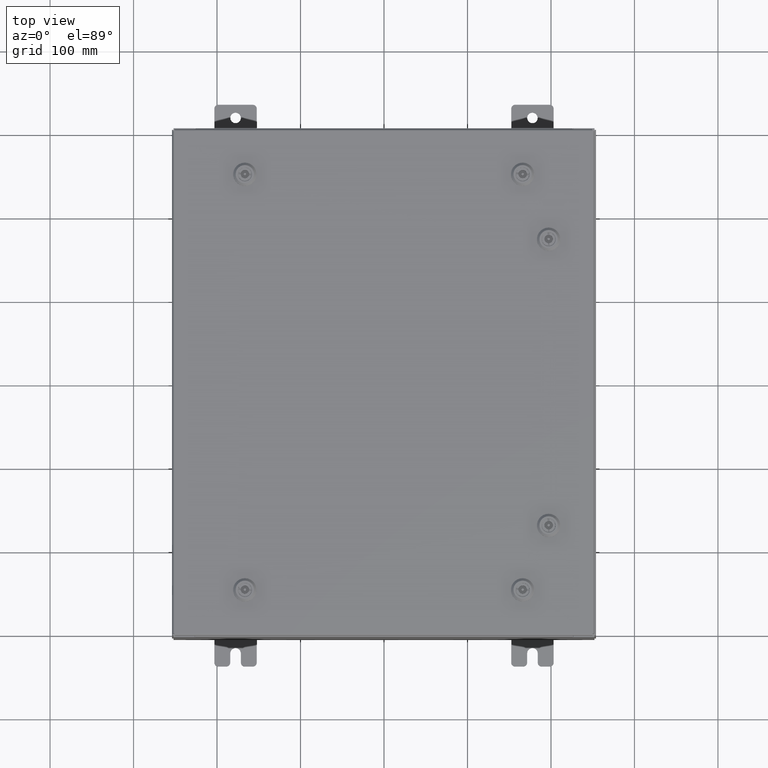
[diagram: clean part render]
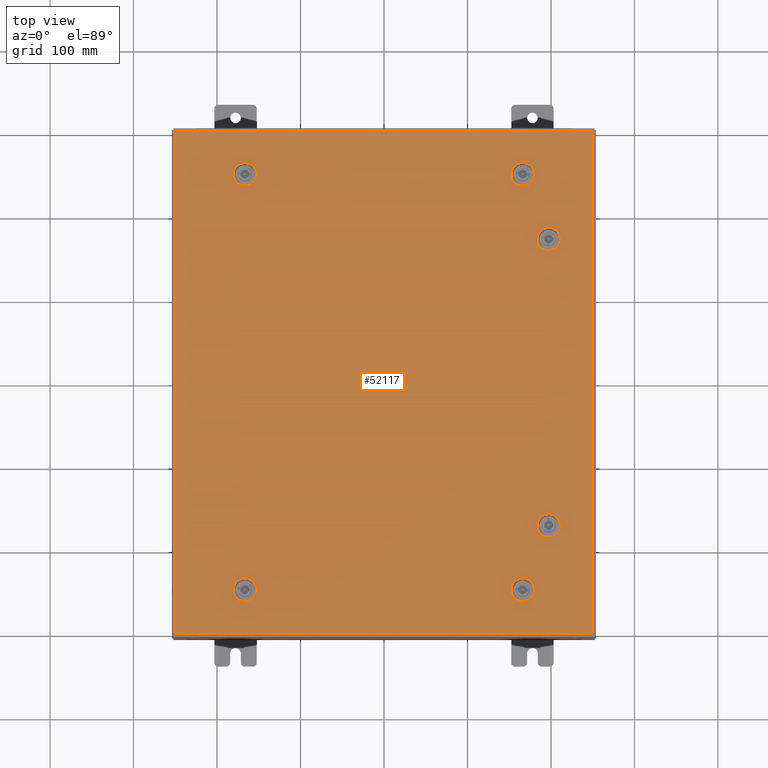
[diagram: same view with one face highlighted and labeled with its STEP entity id]
A machine part, top view. The second image highlights one B-rep face of the part: STEP entity #52117.
In plain terms, the highlighted planar face has unit normal (0, 0, -1).
Its self-contained STEP definition (entity closure, byte-faithful):
#29 = ORIENTED_EDGE ( 'NONE', *, *, #34976, .F. ) ;
#138 = VECTOR ( 'NONE', #22555, 39.37007874015748100 ) ;
#828 = AXIS2_PLACEMENT_3D ( 'NONE', #49563, #20142, #54496 ) ;
#1149 = CARTESIAN_POINT ( 'NONE',  ( 7.787800000000006100, -6.750000000000015100, -4.713499807438240100E-014 ) ) ;
#1556 = DIRECTION ( 'NONE',  ( 1.000000000000000000, 0.0000000000000000000, 0.0000000000000000000 ) ) ;
#1966 = EDGE_LOOP ( 'NONE', ( #42540, #11111, #29081, #46738, #45573 ) ) ;
#2431 = CARTESIAN_POINT ( 'NONE',  ( -6.761952375267868300, -10.18279999999999000, 0.0000000000000000000 ) ) ;
#2481 = CARTESIAN_POINT ( 'NONE',  ( -6.363047624732095300, 10.18279999999998300, 0.0000000000000000000 ) ) ;
#2883 = ORIENTED_EDGE ( 'NONE', *, *, #60091, .F. ) ;
#3074 = DIRECTION ( 'NONE',  ( 0.0000000000000000000, 0.0000000000000000000, -1.000000000000000000 ) ) ;
#3220 = EDGE_CURVE ( 'NONE', #22092, #38439, #21711, .T. ) ;
#3739 = CIRCLE ( 'NONE', #828, 0.4424999999999983400 ) ;
#4013 = VERTEX_POINT ( 'NONE', #7891 ) ;
#4289 = CARTESIAN_POINT ( 'NONE',  ( 6.761952375267868300, 10.18279999999999000, 0.0000000000000000000 ) ) ;
#4304 = VERTEX_POINT ( 'NONE', #23483 ) ;
#4646 = LINE ( 'NONE', #63521, #16155 ) ;
#5006 = EDGE_CURVE ( 'NONE', #46291, #14850, #30880, .T. ) ;
#5032 = DIRECTION ( 'NONE',  ( 8.218046007208852600E-015, 1.000000000000000000, 6.982962677686265900E-015 ) ) ;
#5931 = VERTEX_POINT ( 'NONE', #59109 ) ;
#6066 = VECTOR ( 'NONE', #5032, 39.37007874015748100 ) ;
#6093 = DIRECTION ( 'NONE',  ( 0.0000000000000000000, 1.000000000000000000, 6.982962677686251700E-015 ) ) ;
#6121 = CARTESIAN_POINT ( 'NONE',  ( -6.562499999999986700, -9.787799999999993600, -4.963978678686834100E-014 ) ) ;
#6465 = DIRECTION ( 'NONE',  ( 0.0000000000000000000, 0.0000000000000000000, 1.000000000000000000 ) ) ;
#6664 = CARTESIAN_POINT ( 'NONE',  ( 6.562499999999986700, -9.787799999999993600, -2.326024867937287700E-014 ) ) ;
#6787 = EDGE_LOOP ( 'NONE', ( #48010, #17649, #48501, #48381, #20097 ) ) ;
#6863 = VECTOR ( 'NONE', #54345, 39.37007874015748100 ) ;
#6882 = ORIENTED_EDGE ( 'NONE', *, *, #13526, .T. ) ;
#6900 = CIRCLE ( 'NONE', #44872, 0.4424999999999972800 ) ;
#6985 = DIRECTION ( 'NONE',  ( 0.0000000000000000000, -1.000000000000000000, 0.0000000000000000000 ) ) ;
#7081 = CARTESIAN_POINT ( 'NONE',  ( -6.562499999999986700, 9.787799999999991800, 0.0000000000000000000 ) ) ;
#7403 = AXIS2_PLACEMENT_3D ( 'NONE', #56320, #26874, #61219 ) ;
#7891 = CARTESIAN_POINT ( 'NONE',  ( -6.761952375267868300, 10.18279999999999000, 0.0000000000000000000 ) ) ;
#7905 = VECTOR ( 'NONE', #61704, 39.37007874015748100 ) ;
#7922 = VERTEX_POINT ( 'NONE', #30453 ) ;
#8342 = VECTOR ( 'NONE', #34690, 39.37007874015748100 ) ;
#8753 = VERTEX_POINT ( 'NONE', #23905 ) ;
#8867 = ORIENTED_EDGE ( 'NONE', *, *, #3220, .T. ) ;
#9548 = AXIS2_PLACEMENT_3D ( 'NONE', #57189, #27767, #62110 ) ;
#9674 = CARTESIAN_POINT ( 'NONE',  ( -6.562499999999986700, -9.787799999999993600, -4.963978678686834100E-014 ) ) ;
#9740 = DIRECTION ( 'NONE',  ( 1.000000000000000000, -2.739348669069610000E-015, -6.982962677686248600E-015 ) ) ;
#9945 = CARTESIAN_POINT ( 'NONE',  ( 8.182800000000000300, -6.949452375267901200, -4.852776656685392100E-014 ) ) ;
#10798 = ORIENTED_EDGE ( 'NONE', *, *, #28129, .F. ) ;
#11040 = DIRECTION ( 'NONE',  ( 0.0000000000000000000, 1.000000000000000000, 6.982962677686269100E-015 ) ) ;
#11111 = ORIENTED_EDGE ( 'NONE', *, *, #58409, .F. ) ;
#11436 = VECTOR ( 'NONE', #17781, 39.37007874015748100 ) ;
#11585 = DIRECTION ( 'NONE',  ( 1.000000000000000000, 0.0000000000000000000, 6.982962677686269100E-015 ) ) ;
#11711 = CARTESIAN_POINT ( 'NONE',  ( 8.182800000000000300, -6.949452375267901200, -4.852776656685392100E-014 ) ) ;
#11965 = DIRECTION ( 'NONE',  ( 1.000000000000000000, 0.0000000000000000000, 0.0000000000000000000 ) ) ;
#12290 = CIRCLE ( 'NONE', #9548, 0.4424999999999983400 ) ;
#12403 = CARTESIAN_POINT ( 'NONE',  ( -6.119999999999989400, 9.787799999999991800, 0.0000000000000000000 ) ) ;
#12693 = DIRECTION ( 'NONE',  ( -1.000000000000000000, -0.0000000000000000000, -0.0000000000000000000 ) ) ;
#12699 = CARTESIAN_POINT ( 'NONE',  ( 7.004999999999984800, 9.787799999999991800, -2.946949909237162500E-014 ) ) ;
#12747 = ORIENTED_EDGE ( 'NONE', *, *, #51123, .F. ) ;
#12885 = VERTEX_POINT ( 'NONE', #15949 ) ;
#13028 = VECTOR ( 'NONE', #20201, 39.37007874015748100 ) ;
#13156 = CARTESIAN_POINT ( 'NONE',  ( -6.761952375267871900, -9.392799999999995800, -4.688151652918228700E-014 ) ) ;
#13246 = CARTESIAN_POINT ( 'NONE',  ( 7.392800000000014500, -6.949452375267905600, -4.852776656685395200E-014 ) ) ;
#13526 = EDGE_CURVE ( 'NONE', #52606, #22092, #24515, .T. ) ;
#14078 = FACE_OUTER_BOUND ( 'NONE', #31216, .T. ) ;
#14215 = CARTESIAN_POINT ( 'NONE',  ( 6.562499999999986700, -9.787799999999993600, -2.326024867937287700E-014 ) ) ;
#14396 = CARTESIAN_POINT ( 'NONE',  ( -6.562499999999986700, 9.787799999999991800, 0.0000000000000000000 ) ) ;
#14458 = EDGE_CURVE ( 'NONE', #38439, #43496, #53690, .T. ) ;
#14642 = DIRECTION ( 'NONE',  ( 0.0000000000000000000, 1.000000000000000000, 6.982962677686269100E-015 ) ) ;
#14700 = EDGE_CURVE ( 'NONE', #26196, #39733, #60561, .T. ) ;
#14850 = VERTEX_POINT ( 'NONE', #23637 ) ;
#15218 = VECTOR ( 'NONE', #6985, 39.37007874015748100 ) ;
#15650 = FACE_BOUND ( 'NONE', #22870, .T. ) ;
#15748 = VERTEX_POINT ( 'NONE', #35920 ) ;
#15949 = CARTESIAN_POINT ( 'NONE',  ( 6.761952375267871900, 9.392799999999995800, -2.777230659996697100E-014 ) ) ;
#16137 = DIRECTION ( 'NONE',  ( 1.000000000000000000, 2.739348669069610000E-015, -0.0000000000000000000 ) ) ;
#16155 = VECTOR ( 'NONE', #9740, 39.37007874015748100 ) ;
#16175 = EDGE_LOOP ( 'NONE', ( #29, #31759, #2883, #12747 ) ) ;
#16806 = CIRCLE ( 'NONE', #27442, 0.4424999999999983400 ) ;
#16877 = VERTEX_POINT ( 'NONE', #40060 ) ;
#17111 = CARTESIAN_POINT ( 'NONE',  ( 6.363047624732095300, -10.18279999999998400, -2.741128742953046100E-014 ) ) ;
#17649 = ORIENTED_EDGE ( 'NONE', *, *, #18843, .F. ) ;
#17781 = DIRECTION ( 'NONE',  ( -1.000000000000000000, 2.739348669069610000E-015, 1.946424297521510000E-029 ) ) ;
#17976 = AXIS2_PLACEMENT_3D ( 'NONE', #14396, #48686, #19278 ) ;
#18208 = CIRCLE ( 'NONE', #50976, 0.4424999999999972800 ) ;
#18456 = EDGE_CURVE ( 'NONE', #7922, #28146, #24417, .T. ) ;
#18843 = EDGE_CURVE ( 'NONE', #52061, #30908, #3739, .T. ) ;
#19017 = LINE ( 'NONE', #9945, #6066 ) ;
#19024 = EDGE_CURVE ( 'NONE', #44923, #58112, #25159, .T. ) ;
#19087 = DIRECTION ( 'NONE',  ( 1.000000000000000000, 0.0000000000000000000, 6.982962677686269100E-015 ) ) ;
#19278 = DIRECTION ( 'NONE',  ( 1.000000000000000000, 0.0000000000000000000, 0.0000000000000000000 ) ) ;
#19568 = ORIENTED_EDGE ( 'NONE', *, *, #41877, .T. ) ;
#19895 = EDGE_CURVE ( 'NONE', #39236, #8753, #18208, .T. ) ;
#20097 = ORIENTED_EDGE ( 'NONE', *, *, #14700, .F. ) ;
#20142 = DIRECTION ( 'NONE',  ( 6.982962677686266700E-015, -0.0000000000000000000, 1.000000000000000000 ) ) ;
#20201 = DIRECTION ( 'NONE',  ( -8.218046007208852600E-015, 1.000000000000000000, -0.0000000000000000000 ) ) ;
#21241 = CARTESIAN_POINT ( 'NONE',  ( 8.182800000000003800, 6.550547624732132600, 0.0000000000000000000 ) ) ;
#21402 = CIRCLE ( 'NONE', #54353, 0.4424999999999972800 ) ;
#21711 = LINE ( 'NONE', #27336, #57819 ) ;
#22092 = VERTEX_POINT ( 'NONE', #22483 ) ;
#22483 = CARTESIAN_POINT ( 'NONE',  ( 9.849799999999996600, -11.84980000000000000, -2.048885995248197400E-016 ) ) ;
#22515 = PLANE ( 'NONE',  #57810 ) ;
#22555 = DIRECTION ( 'NONE',  ( -1.000000000000000000, -2.739348669069610000E-015, -6.982962677686276200E-015 ) ) ;
#22722 = CARTESIAN_POINT ( 'NONE',  ( -6.363047624732101500, 9.392799999999995800, 0.0000000000000000000 ) ) ;
#22841 = LINE ( 'NONE', #13246, #8342 ) ;
#22843 = DIRECTION ( 'NONE',  ( 1.000000000000000000, -0.0000000000000000000, -0.0000000000000000000 ) ) ;
#22870 = EDGE_LOOP ( 'NONE', ( #25334, #32273, #58362, #32843 ) ) ;
#22946 = VERTEX_POINT ( 'NONE', #61910 ) ;
#23236 = CARTESIAN_POINT ( 'NONE',  ( 7.004999999999983900, -9.787799999999993600, -2.017028769449672300E-014 ) ) ;
#23483 = CARTESIAN_POINT ( 'NONE',  ( 6.761952375267871900, -9.392799999999995800, 0.0000000000000000000 ) ) ;
#23637 = CARTESIAN_POINT ( 'NONE',  ( -6.363047624732095300, -10.18279999999998400, -5.239805704455435800E-014 ) ) ;
#23905 = CARTESIAN_POINT ( 'NONE',  ( -6.363047624732095300, 10.18279999999998300, 0.0000000000000000000 ) ) ;
#23954 = AXIS2_PLACEMENT_3D ( 'NONE', #55487, #26048, #60384 ) ;
#24417 = LINE ( 'NONE', #32356, #11436 ) ;
#24515 = LINE ( 'NONE', #52289, #36054 ) ;
#25159 = CIRCLE ( 'NONE', #33627, 0.4424999999999983400 ) ;
#25279 = AXIS2_PLACEMENT_3D ( 'NONE', #1149, #35424, #6093 ) ;
#25334 = ORIENTED_EDGE ( 'NONE', *, *, #30111, .F. ) ;
#25400 = VERTEX_POINT ( 'NONE', #23236 ) ;
#25463 = CARTESIAN_POINT ( 'NONE',  ( -9.849800000000001900, 11.84980000000000000, -2.048885995248197400E-016 ) ) ;
#25508 = DIRECTION ( 'NONE',  ( -6.982962677686266700E-015, -6.982962677686266700E-015, 1.000000000000000000 ) ) ;
#25825 = VECTOR ( 'NONE', #57565, 39.37007874015748100 ) ;
#25899 = CARTESIAN_POINT ( 'NONE',  ( 9.849799999999996600, 11.84980000000000000, 8.878505979408856000E-016 ) ) ;
#26048 = DIRECTION ( 'NONE',  ( -0.0000000000000000000, -6.982962677686266700E-015, 1.000000000000000000 ) ) ;
#26177 = LINE ( 'NONE', #62044, #138 ) ;
#26196 = VERTEX_POINT ( 'NONE', #44783 ) ;
#26636 = CARTESIAN_POINT ( 'NONE',  ( 6.562499999999986700, 9.787799999999991800, -2.637953810749545800E-014 ) ) ;
#26777 = AXIS2_PLACEMENT_3D ( 'NONE', #27829, #62171, #32757 ) ;
#26874 = DIRECTION ( 'NONE',  ( 0.0000000000000000000, 0.0000000000000000000, 1.000000000000000000 ) ) ;
#27062 = FACE_BOUND ( 'NONE', #1966, .T. ) ;
#27135 = DIRECTION ( 'NONE',  ( 0.0000000000000000000, 1.000000000000000000, 0.0000000000000000000 ) ) ;
#27336 = CARTESIAN_POINT ( 'NONE',  ( 9.849799999999996600, -11.84980000000000000, -2.048885995248197400E-016 ) ) ;
#27442 = AXIS2_PLACEMENT_3D ( 'NONE', #26636, #60995, #31608 ) ;
#27507 = AXIS2_PLACEMENT_3D ( 'NONE', #54939, #25508, #59863 ) ;
#27576 = LINE ( 'NONE', #54556, #13028 ) ;
#27767 = DIRECTION ( 'NONE',  ( -0.0000000000000000000, -6.982962677686266700E-015, 1.000000000000000000 ) ) ;
#27829 = CARTESIAN_POINT ( 'NONE',  ( 6.562499999999986700, 9.787799999999991800, -2.637953810749545800E-014 ) ) ;
#27893 = VERTEX_POINT ( 'NONE', #11711 ) ;
#28129 = EDGE_CURVE ( 'NONE', #4304, #56288, #26177, .T. ) ;
#28146 = VERTEX_POINT ( 'NONE', #13156 ) ;
#29075 = LINE ( 'NONE', #45512, #30638 ) ;
#29081 = ORIENTED_EDGE ( 'NONE', *, *, #59660, .F. ) ;
#29550 = EDGE_CURVE ( 'NONE', #56774, #39236, #38394, .T. ) ;
#29752 = AXIS2_PLACEMENT_3D ( 'NONE', #9674, #43974, #14642 ) ;
#29831 = LINE ( 'NONE', #2481, #42844 ) ;
#29944 = ORIENTED_EDGE ( 'NONE', *, *, #33427, .F. ) ;
#29989 = EDGE_CURVE ( 'NONE', #39733, #12885, #4646, .T. ) ;
#30111 = EDGE_CURVE ( 'NONE', #58112, #15748, #27576, .T. ) ;
#30453 = CARTESIAN_POINT ( 'NONE',  ( -6.363047624732101500, -9.392799999999997600, -4.688151652918229300E-014 ) ) ;
#30638 = VECTOR ( 'NONE', #16137, 39.37007874015748100 ) ;
#30880 = LINE ( 'NONE', #56784, #7905 ) ;
#30904 = DIRECTION ( 'NONE',  ( 0.0000000000000000000, 0.0000000000000000000, 1.000000000000000000 ) ) ;
#30908 = VERTEX_POINT ( 'NONE', #4289 ) ;
#31046 = CARTESIAN_POINT ( 'NONE',  ( 7.392800000000010000, -6.550547624732132600, 0.0000000000000000000 ) ) ;
#31216 = EDGE_LOOP ( 'NONE', ( #6882, #8867, #31851, #19568 ) ) ;
#31608 = DIRECTION ( 'NONE',  ( -1.000000000000000000, 0.0000000000000000000, 6.982962677686261200E-015 ) ) ;
#31706 = FACE_BOUND ( 'NONE', #6787, .T. ) ;
#31759 = ORIENTED_EDGE ( 'NONE', *, *, #39377, .F. ) ;
#31851 = ORIENTED_EDGE ( 'NONE', *, *, #14458, .T. ) ;
#31852 = DIRECTION ( 'NONE',  ( 1.000000000000000000, -1.095739467627835000E-014, 6.982962677686171300E-015 ) ) ;
#32008 = DIRECTION ( 'NONE',  ( -1.000000000000000000, 1.643609201441752500E-014, 0.0000000000000000000 ) ) ;
#32072 = VERTEX_POINT ( 'NONE', #52953 ) ;
#32271 = CIRCLE ( 'NONE', #38648, 0.4424999999999972800 ) ;
#32273 = ORIENTED_EDGE ( 'NONE', *, *, #19024, .F. ) ;
#32356 = CARTESIAN_POINT ( 'NONE',  ( -6.363047624732101500, -9.392799999999997600, -4.688151652918229300E-014 ) ) ;
#32757 = DIRECTION ( 'NONE',  ( -1.000000000000000000, 0.0000000000000000000, 6.982962677686260400E-015 ) ) ;
#32843 = ORIENTED_EDGE ( 'NONE', *, *, #39947, .F. ) ;
#32899 = CIRCLE ( 'NONE', #29752, 0.4424999999999972800 ) ;
#33078 = CARTESIAN_POINT ( 'NONE',  ( 6.363047624732095300, 10.18279999999998300, -2.498676961502389700E-014 ) ) ;
#33427 = EDGE_CURVE ( 'NONE', #14850, #48768, #62882, .T. ) ;
#33463 = ORIENTED_EDGE ( 'NONE', *, *, #38466, .F. ) ;
#33627 = AXIS2_PLACEMENT_3D ( 'NONE', #35779, #6465, #40733 ) ;
#34215 = EDGE_CURVE ( 'NONE', #28146, #46291, #32899, .T. ) ;
#34316 = EDGE_LOOP ( 'NONE', ( #10798, #56647, #44217, #46157, #33463 ) ) ;
#34690 = DIRECTION ( 'NONE',  ( 1.095739467627835000E-014, -1.000000000000000000, -6.982962677686269100E-015 ) ) ;
#34976 = EDGE_CURVE ( 'NONE', #40752, #32072, #22841, .T. ) ;
#35424 = DIRECTION ( 'NONE',  ( -0.0000000000000000000, -6.982962677686266700E-015, 1.000000000000000000 ) ) ;
#35779 = CARTESIAN_POINT ( 'NONE',  ( 7.787800000000005200, 6.750000000000015100, 0.0000000000000000000 ) ) ;
#35920 = CARTESIAN_POINT ( 'NONE',  ( 8.182800000000000300, 6.949452375267901200, 0.0000000000000000000 ) ) ;
#35960 = LINE ( 'NONE', #17111, #60525 ) ;
#36025 = CARTESIAN_POINT ( 'NONE',  ( 7.392800000000008300, 6.550547624732132600, 0.0000000000000000000 ) ) ;
#36054 = VECTOR ( 'NONE', #22843, 39.37007874015748100 ) ;
#36718 = EDGE_CURVE ( 'NONE', #30908, #26196, #37360, .T. ) ;
#36998 = VERTEX_POINT ( 'NONE', #42258 ) ;
#37351 = DIRECTION ( 'NONE',  ( -1.000000000000000000, 0.0000000000000000000, -0.0000000000000000000 ) ) ;
#37360 = LINE ( 'NONE', #33078, #25825 ) ;
#37471 = CIRCLE ( 'NONE', #23954, 0.4424999999999972800 ) ;
#38152 = ORIENTED_EDGE ( 'NONE', *, *, #34215, .F. ) ;
#38394 = CIRCLE ( 'NONE', #7403, 0.4424999999999972800 ) ;
#38439 = VERTEX_POINT ( 'NONE', #25899 ) ;
#38466 = EDGE_CURVE ( 'NONE', #56288, #49155, #6900, .T. ) ;
#38648 = AXIS2_PLACEMENT_3D ( 'NONE', #14215, #48503, #19087 ) ;
#39040 = CARTESIAN_POINT ( 'NONE',  ( -6.119999999999989400, -9.787799999999993600, -4.963978678686834100E-014 ) ) ;
#39236 = VERTEX_POINT ( 'NONE', #12403 ) ;
#39377 = EDGE_CURVE ( 'NONE', #5931, #40752, #12290, .T. ) ;
#39542 = CARTESIAN_POINT ( 'NONE',  ( 7.392800000000011800, 6.949452375267905600, 0.0000000000000000000 ) ) ;
#39733 = VERTEX_POINT ( 'NONE', #49042 ) ;
#39947 = EDGE_CURVE ( 'NONE', #15748, #16877, #21402, .T. ) ;
#40060 = CARTESIAN_POINT ( 'NONE',  ( 7.392800000000011800, 6.949452375267905600, 0.0000000000000000000 ) ) ;
#40147 = FACE_BOUND ( 'NONE', #43630, .T. ) ;
#40361 = DIRECTION ( 'NONE',  ( -0.0000000000000000000, -6.982962677686266700E-015, 1.000000000000000000 ) ) ;
#40733 = DIRECTION ( 'NONE',  ( 1.000000000000000000, 0.0000000000000000000, 0.0000000000000000000 ) ) ;
#40752 = VERTEX_POINT ( 'NONE', #31046 ) ;
#40873 = EDGE_CURVE ( 'NONE', #49155, #36998, #35960, .T. ) ;
#40937 = DIRECTION ( 'NONE',  ( -6.982962677686266700E-015, -6.982962677686266700E-015, 1.000000000000000000 ) ) ;
#41237 = CARTESIAN_POINT ( 'NONE',  ( -9.849800000000001900, 11.84980000000000000, -2.048885995248197400E-016 ) ) ;
#41335 = DIRECTION ( 'NONE',  ( 0.0000000000000000000, 0.0000000000000000000, 1.000000000000000000 ) ) ;
#41877 = EDGE_CURVE ( 'NONE', #43496, #52606, #55874, .T. ) ;
#42124 = VECTOR ( 'NONE', #12693, 39.37007874015748100 ) ;
#42258 = CARTESIAN_POINT ( 'NONE',  ( 6.761952375267868300, -10.18279999999999000, -2.462575044458744400E-014 ) ) ;
#42540 = ORIENTED_EDGE ( 'NONE', *, *, #47022, .F. ) ;
#42844 = VECTOR ( 'NONE', #32008, 39.37007874015748100 ) ;
#43496 = VERTEX_POINT ( 'NONE', #25463 ) ;
#43630 = EDGE_LOOP ( 'NONE', ( #56704, #38152, #43958, #55262, #29944 ) ) ;
#43958 = ORIENTED_EDGE ( 'NONE', *, *, #18456, .F. ) ;
#43974 = DIRECTION ( 'NONE',  ( -0.0000000000000000000, -6.982962677686266700E-015, 1.000000000000000000 ) ) ;
#44217 = ORIENTED_EDGE ( 'NONE', *, *, #57185, .F. ) ;
#44783 = CARTESIAN_POINT ( 'NONE',  ( 6.363047624732095300, 10.18279999999998300, -2.498676961502389700E-014 ) ) ;
#44872 = AXIS2_PLACEMENT_3D ( 'NONE', #6664, #40937, #11585 ) ;
#44923 = VERTEX_POINT ( 'NONE', #36025 ) ;
#45512 = CARTESIAN_POINT ( 'NONE',  ( -6.363047624732101500, 9.392799999999995800, 0.0000000000000000000 ) ) ;
#45573 = ORIENTED_EDGE ( 'NONE', *, *, #29550, .F. ) ;
#46052 = EDGE_CURVE ( 'NONE', #16877, #44923, #59044, .T. ) ;
#46118 = CARTESIAN_POINT ( 'NONE',  ( 6.363047624732101500, -9.392799999999997600, -2.189474691415834200E-014 ) ) ;
#46157 = ORIENTED_EDGE ( 'NONE', *, *, #40873, .F. ) ;
#46291 = VERTEX_POINT ( 'NONE', #2431 ) ;
#46738 = ORIENTED_EDGE ( 'NONE', *, *, #19895, .F. ) ;
#47019 = CARTESIAN_POINT ( 'NONE',  ( 9.849799999999996600, 11.84980000000000000, 8.878505979408856000E-016 ) ) ;
#47022 = EDGE_CURVE ( 'NONE', #22946, #56774, #29075, .T. ) ;
#48010 = ORIENTED_EDGE ( 'NONE', *, *, #36718, .F. ) ;
#48112 = EDGE_CURVE ( 'NONE', #48768, #7922, #37471, .T. ) ;
#48381 = ORIENTED_EDGE ( 'NONE', *, *, #29989, .F. ) ;
#48501 = ORIENTED_EDGE ( 'NONE', *, *, #59605, .F. ) ;
#48503 = DIRECTION ( 'NONE',  ( -6.982962677686266700E-015, -6.982962677686266700E-015, 1.000000000000000000 ) ) ;
#48686 = DIRECTION ( 'NONE',  ( 0.0000000000000000000, 0.0000000000000000000, 1.000000000000000000 ) ) ;
#48768 = VERTEX_POINT ( 'NONE', #39040 ) ;
#49042 = CARTESIAN_POINT ( 'NONE',  ( 6.363047624732101500, 9.392799999999995800, -2.498676961502394800E-014 ) ) ;
#49155 = VERTEX_POINT ( 'NONE', #50608 ) ;
#49563 = CARTESIAN_POINT ( 'NONE',  ( 6.562499999999986700, 9.787799999999991800, -2.637953810749545800E-014 ) ) ;
#50372 = CIRCLE ( 'NONE', #25279, 0.4424999999999972800 ) ;
#50608 = CARTESIAN_POINT ( 'NONE',  ( 6.363047624732095300, -10.18279999999998400, -2.741128742953046100E-014 ) ) ;
#50976 = AXIS2_PLACEMENT_3D ( 'NONE', #7081, #41335, #11965 ) ;
#51123 = EDGE_CURVE ( 'NONE', #32072, #27893, #50372, .T. ) ;
#52061 = VERTEX_POINT ( 'NONE', #12699 ) ;
#52117 = ADVANCED_FACE ( 'NONE', ( #54765, #15650, #53204, #40147, #31706, #27062, #14078 ), #22515, .F. ) ;
#52289 = CARTESIAN_POINT ( 'NONE',  ( -9.849800000000001900, -11.84980000000000000, -2.048885995248197400E-016 ) ) ;
#52606 = VERTEX_POINT ( 'NONE', #61101 ) ;
#52953 = CARTESIAN_POINT ( 'NONE',  ( 7.392800000000014500, -6.949452375267905600, -4.852776656685395200E-014 ) ) ;
#53204 = FACE_BOUND ( 'NONE', #34316, .T. ) ;
#53690 = LINE ( 'NONE', #47019, #42124 ) ;
#54345 = DIRECTION ( 'NONE',  ( -8.218046007208762600E-015, -1.000000000000000000, 0.0000000000000000000 ) ) ;
#54353 = AXIS2_PLACEMENT_3D ( 'NONE', #60281, #30904, #1556 ) ;
#54496 = DIRECTION ( 'NONE',  ( -1.000000000000000000, 0.0000000000000000000, 6.982962677686261200E-015 ) ) ;
#54556 = CARTESIAN_POINT ( 'NONE',  ( 8.182800000000000300, 6.949452375267901200, 0.0000000000000000000 ) ) ;
#54765 = FACE_BOUND ( 'NONE', #16175, .T. ) ;
#54939 = CARTESIAN_POINT ( 'NONE',  ( 6.562499999999986700, -9.787799999999993600, -2.326024867937287700E-014 ) ) ;
#55249 = AXIS2_PLACEMENT_3D ( 'NONE', #6121, #40361, #11040 ) ;
#55262 = ORIENTED_EDGE ( 'NONE', *, *, #48112, .F. ) ;
#55487 = CARTESIAN_POINT ( 'NONE',  ( -6.562499999999986700, -9.787799999999993600, -4.963978678686834100E-014 ) ) ;
#55874 = LINE ( 'NONE', #41237, #15218 ) ;
#56288 = VERTEX_POINT ( 'NONE', #46118 ) ;
#56320 = CARTESIAN_POINT ( 'NONE',  ( -6.562499999999986700, 9.787799999999991800, 0.0000000000000000000 ) ) ;
#56647 = ORIENTED_EDGE ( 'NONE', *, *, #56943, .F. ) ;
#56704 = ORIENTED_EDGE ( 'NONE', *, *, #5006, .F. ) ;
#56774 = VERTEX_POINT ( 'NONE', #22722 ) ;
#56784 = CARTESIAN_POINT ( 'NONE',  ( -6.363047624732095300, -10.18279999999998400, -5.239805704455435800E-014 ) ) ;
#56943 = EDGE_CURVE ( 'NONE', #25400, #4304, #32271, .T. ) ;
#57185 = EDGE_CURVE ( 'NONE', #36998, #25400, #62179, .T. ) ;
#57189 = CARTESIAN_POINT ( 'NONE',  ( 7.787800000000006100, -6.750000000000015100, -4.713499807438240100E-014 ) ) ;
#57514 = CIRCLE ( 'NONE', #17976, 0.4424999999999983400 ) ;
#57565 = DIRECTION ( 'NONE',  ( -1.000000000000000000, -1.643609201441752500E-014, 6.982962677686269100E-015 ) ) ;
#57810 = AXIS2_PLACEMENT_3D ( 'NONE', #61802, #3074, #37351 ) ;
#57819 = VECTOR ( 'NONE', #27135, 39.37007874015748100 ) ;
#58112 = VERTEX_POINT ( 'NONE', #21241 ) ;
#58362 = ORIENTED_EDGE ( 'NONE', *, *, #46052, .F. ) ;
#58409 = EDGE_CURVE ( 'NONE', #4013, #22946, #57514, .T. ) ;
#59044 = LINE ( 'NONE', #39542, #6863 ) ;
#59109 = CARTESIAN_POINT ( 'NONE',  ( 8.182800000000003800, -6.550547624732132600, -4.574222958191090100E-014 ) ) ;
#59605 = EDGE_CURVE ( 'NONE', #12885, #52061, #16806, .T. ) ;
#59660 = EDGE_CURVE ( 'NONE', #8753, #4013, #29831, .T. ) ;
#59863 = DIRECTION ( 'NONE',  ( 1.000000000000000000, 0.0000000000000000000, 6.982962677686269100E-015 ) ) ;
#60091 = EDGE_CURVE ( 'NONE', #27893, #5931, #19017, .T. ) ;
#60281 = CARTESIAN_POINT ( 'NONE',  ( 7.787800000000005200, 6.750000000000015100, 0.0000000000000000000 ) ) ;
#60384 = DIRECTION ( 'NONE',  ( 0.0000000000000000000, 1.000000000000000000, 6.982962677686269100E-015 ) ) ;
#60525 = VECTOR ( 'NONE', #31852, 39.37007874015748100 ) ;
#60561 = CIRCLE ( 'NONE', #26777, 0.4424999999999972800 ) ;
#60995 = DIRECTION ( 'NONE',  ( 6.982962677686266700E-015, -0.0000000000000000000, 1.000000000000000000 ) ) ;
#61101 = CARTESIAN_POINT ( 'NONE',  ( -9.849800000000001900, -11.84980000000000000, -2.048885995248197400E-016 ) ) ;
#61219 = DIRECTION ( 'NONE',  ( 1.000000000000000000, 0.0000000000000000000, 0.0000000000000000000 ) ) ;
#61704 = DIRECTION ( 'NONE',  ( 1.000000000000000000, 1.095739467627835000E-014, 9.732121487607470400E-029 ) ) ;
#61802 = CARTESIAN_POINT ( 'NONE',  ( 0.0000000000000000000, 0.0000000000000000000, 0.0000000000000000000 ) ) ;
#61910 = CARTESIAN_POINT ( 'NONE',  ( -6.761952375267871900, 9.392799999999995800, 0.0000000000000000000 ) ) ;
#62044 = CARTESIAN_POINT ( 'NONE',  ( 6.363047624732101500, -9.392799999999997600, -2.189474691415834200E-014 ) ) ;
#62110 = DIRECTION ( 'NONE',  ( 0.0000000000000000000, 1.000000000000000000, 6.982962677686252500E-015 ) ) ;
#62171 = DIRECTION ( 'NONE',  ( 6.982962677686266700E-015, -0.0000000000000000000, 1.000000000000000000 ) ) ;
#62179 = CIRCLE ( 'NONE', #27507, 0.4424999999999972800 ) ;
#62882 = CIRCLE ( 'NONE', #55249, 0.4424999999999972800 ) ;
#63521 = CARTESIAN_POINT ( 'NONE',  ( 6.363047624732101500, 9.392799999999995800, -2.498676961502394800E-014 ) ) ;